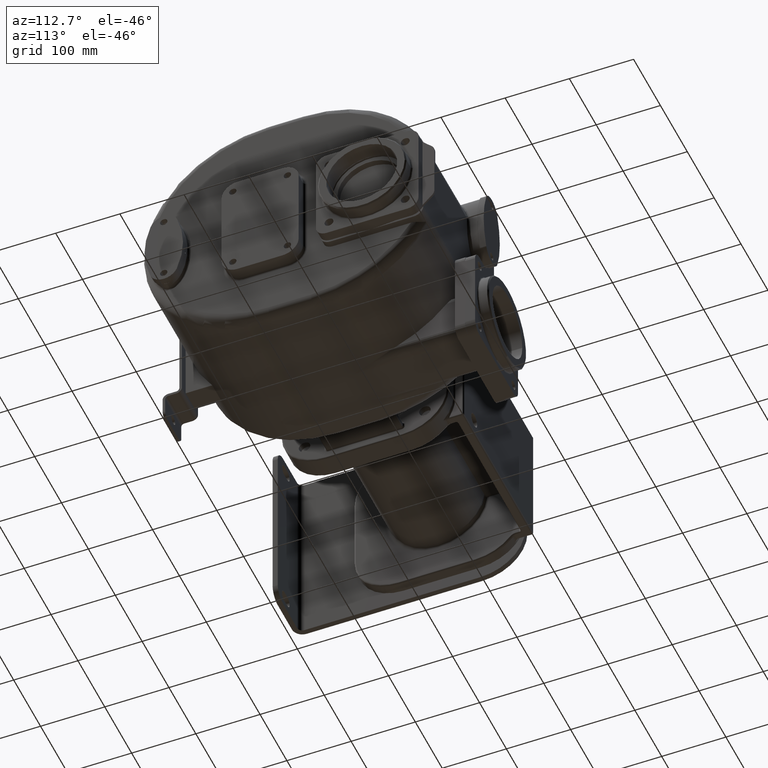
[diagram: clean part render]
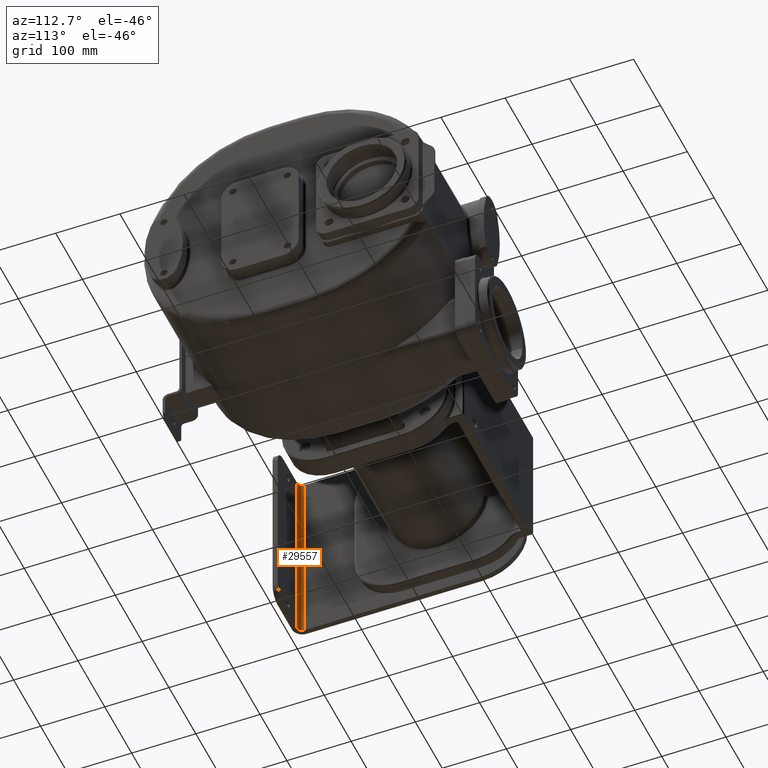
[diagram: same view with one face highlighted and labeled with its STEP entity id]
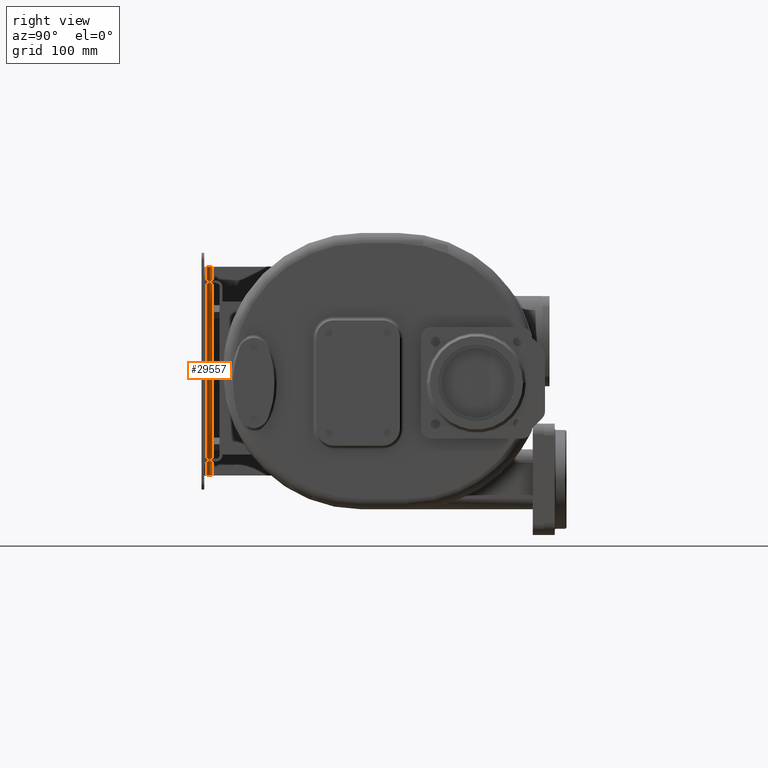
[diagram: same view with one face highlighted and labeled with its STEP entity id]
A machine part, auxiliary view. The second image highlights one B-rep face of the part: STEP entity #29557.
A second angle (right view) of the same face is appended — the face is thin or edge-on in the first view.
In plain terms, the highlighted cylindrical surface (edge-blend (fillet) strip) has radius 8 mm, axis along (0, 0, -1).
Its self-contained STEP definition (entity closure, byte-faithful):
#7242=DIRECTION('',(0.E0,0.E0,1.E0));
#7243=VECTOR('',#7242,3.E2);
#7244=CARTESIAN_POINT('',(-4.515E2,-2.2E1,-1.5E2));
#7245=LINE('',#7244,#7243);
#7246=CARTESIAN_POINT('',(-4.515E2,-1.4E1,1.5E2));
#7247=DIRECTION('',(0.E0,0.E0,-1.E0));
#7248=DIRECTION('',(0.E0,-1.E0,0.E0));
#7249=AXIS2_PLACEMENT_3D('',#7246,#7247,#7248);
#7251=DIRECTION('',(0.E0,0.E0,1.E0));
#7252=VECTOR('',#7251,3.E2);
#7253=CARTESIAN_POINT('',(-4.595E2,-1.4E1,-1.5E2));
#7254=LINE('',#7253,#7252);
#7255=CARTESIAN_POINT('',(-4.515E2,-1.4E1,-1.5E2));
#7256=DIRECTION('',(0.E0,0.E0,-1.E0));
#7257=DIRECTION('',(0.E0,-1.E0,0.E0));
#7258=AXIS2_PLACEMENT_3D('',#7255,#7256,#7257);
#21529=CARTESIAN_POINT('',(-4.515E2,-2.2E1,-1.5E2));
#21530=CARTESIAN_POINT('',(-4.515E2,-2.2E1,1.5E2));
#21531=VERTEX_POINT('',#21529);
#21532=VERTEX_POINT('',#21530);
#21533=CARTESIAN_POINT('',(-4.595E2,-1.4E1,-1.5E2));
#21534=VERTEX_POINT('',#21533);
#21535=CARTESIAN_POINT('',(-4.595E2,-1.4E1,1.5E2));
#21536=VERTEX_POINT('',#21535);
#29545=CARTESIAN_POINT('',(-4.515E2,-1.4E1,-1.5E2));
#29546=DIRECTION('',(0.E0,0.E0,-1.E0));
#29547=DIRECTION('',(0.E0,-1.E0,0.E0));
#29548=AXIS2_PLACEMENT_3D('',#29545,#29546,#29547);
#29549=CYLINDRICAL_SURFACE('',#29548,8.E0);
#29550=ORIENTED_EDGE('',*,*,#29514,.T.);
#29551=ORIENTED_EDGE('',*,*,#29418,.T.);
#29552=ORIENTED_EDGE('',*,*,#29303,.F.);
#29554=ORIENTED_EDGE('',*,*,#29553,.F.);
#29555=EDGE_LOOP('',(#29550,#29551,#29552,#29554));
#29556=FACE_OUTER_BOUND('',#29555,.F.);
#29557=ADVANCED_FACE('',(#29556),#29549,.F.);
#7250=CIRCLE('',#7249,8.E0);
#7259=CIRCLE('',#7258,8.E0);
#29303=EDGE_CURVE('',#21534,#21536,#7254,.T.);
#29418=EDGE_CURVE('',#21532,#21536,#7250,.T.);
#29514=EDGE_CURVE('',#21531,#21532,#7245,.T.);
#29553=EDGE_CURVE('',#21531,#21534,#7259,.T.);